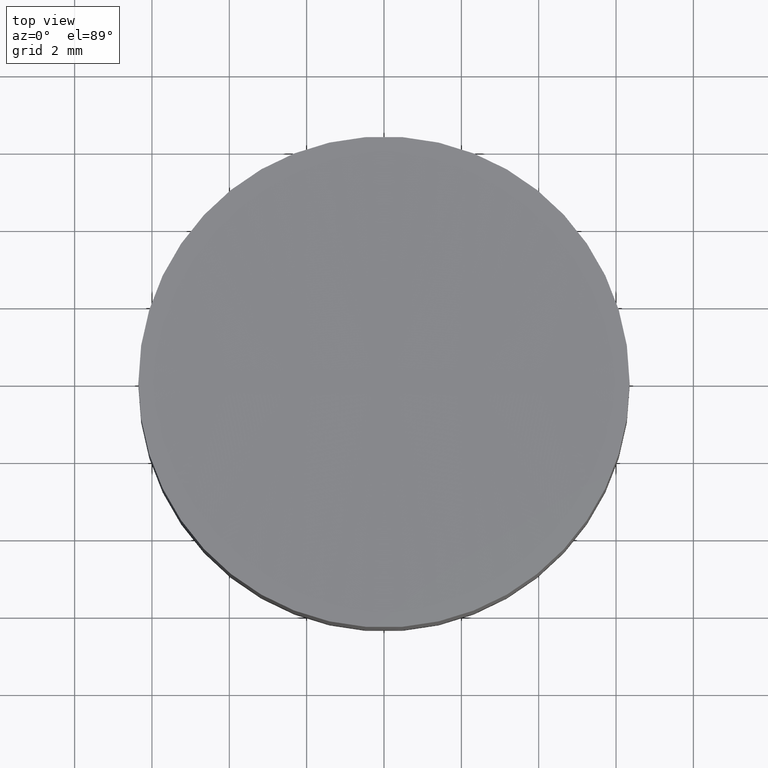
[diagram: clean part render]
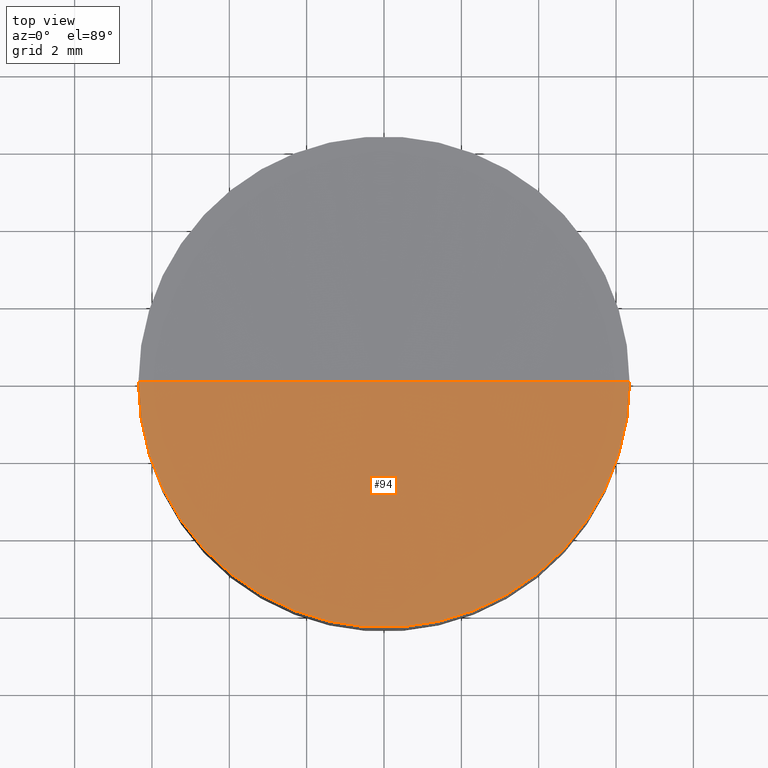
[diagram: same view with one face highlighted and labeled with its STEP entity id]
A machine part, top view. The second image highlights one B-rep face of the part: STEP entity #94.
In plain terms, the highlighted spherical surface has radius 3000 mm.
Its self-contained STEP definition (entity closure, byte-faithful):
#14 = SPHERICAL_SURFACE ( 'NONE', #90, 3000.000000000000000 ) ;
#19 = ORIENTED_EDGE ( 'NONE', *, *, #111, .F. ) ;
#22 = ORIENTED_EDGE ( 'NONE', *, *, #44, .F. ) ;
#27 = DIRECTION ( 'NONE',  ( -0.000000000000000000, -0.000000000000000000, -1.000000000000000000 ) ) ;
#29 = CARTESIAN_POINT ( 'NONE',  ( 5.531931202551628353E-13, 0.000000000000000000, 5.993279575805754433 ) ) ;
#33 = CIRCLE ( 'NONE', #155, 6.350000000023658941 ) ;
#42 = CARTESIAN_POINT ( 'NONE',  ( 3.694961003830599111E-13, 0.000000000000000000, 3005.993279575805900 ) ) ;
#44 = EDGE_CURVE ( 'NONE', #68, #73, #173, .T. ) ;
#45 = CARTESIAN_POINT ( 'NONE',  ( -6.350000000023290347, 0.000000000000000000, 5.999999999999783284 ) ) ;
#48 = ORIENTED_EDGE ( 'NONE', *, *, #183, .T. ) ;
#61 = AXIS2_PLACEMENT_3D ( 'NONE', #82, #185, #139 ) ;
#68 = VERTEX_POINT ( 'NONE', #45 ) ;
#73 = VERTEX_POINT ( 'NONE', #29 ) ;
#82 = CARTESIAN_POINT ( 'NONE',  ( 3.694961003830599111E-13, 0.000000000000000000, 3005.993279575805900 ) ) ;
#86 = AXIS2_PLACEMENT_3D ( 'NONE', #150, #199, #184 ) ;
#90 = AXIS2_PLACEMENT_3D ( 'NONE', #42, #118, #138 ) ;
#94 = ADVANCED_FACE ( 'NONE', ( #104 ), #14, .F. ) ;
#104 = FACE_OUTER_BOUND ( 'NONE', #128, .T. ) ;
#111 = EDGE_CURVE ( 'NONE', #126, #68, #33, .T. ) ;
#118 = DIRECTION ( 'NONE',  ( 0.000000000000000000, -1.000000000000000000, -0.000000000000000000 ) ) ;
#123 = CIRCLE ( 'NONE', #61, 3000.000000000000455 ) ;
#126 = VERTEX_POINT ( 'NONE', #198 ) ;
#128 = EDGE_LOOP ( 'NONE', ( #22, #19, #48 ) ) ;
#137 = DIRECTION ( 'NONE',  ( 1.000000000000000000, 0.000000000000000000, 0.000000000000000000 ) ) ;
#138 = DIRECTION ( 'NONE',  ( 1.000000000000000000, 0.000000000000000000, 0.000000000000000000 ) ) ;
#139 = DIRECTION ( 'NONE',  ( 0.000000000000000000, 0.000000000000000000, 1.000000000000000000 ) ) ;
#150 = CARTESIAN_POINT ( 'NONE',  ( 3.694961003830599111E-13, 0.000000000000000000, 3005.993279575805900 ) ) ;
#155 = AXIS2_PLACEMENT_3D ( 'NONE', #166, #27, #137 ) ;
#166 = CARTESIAN_POINT ( 'NONE',  ( 3.694961003830599111E-13, 0.000000000000000000, 5.999999999999783284 ) ) ;
#173 = CIRCLE ( 'NONE', #86, 3000.000000000000000 ) ;
#183 = EDGE_CURVE ( 'NONE', #126, #73, #123, .T. ) ;
#184 = DIRECTION ( 'NONE',  ( 1.000000000000000000, 1.224646799147353207E-16, 0.000000000000000000 ) ) ;
#185 = DIRECTION ( 'NONE',  ( 0.000000000000000000, 1.000000000000000000, -0.000000000000000000 ) ) ;
#198 = CARTESIAN_POINT ( 'NONE',  ( 6.350000000024028424, 7.776507174615119633E-16, 5.999999999999783284 ) ) ;
#199 = DIRECTION ( 'NONE',  ( 1.224646799147353207E-16, -1.000000000000000000, 0.000000000000000000 ) ) ;